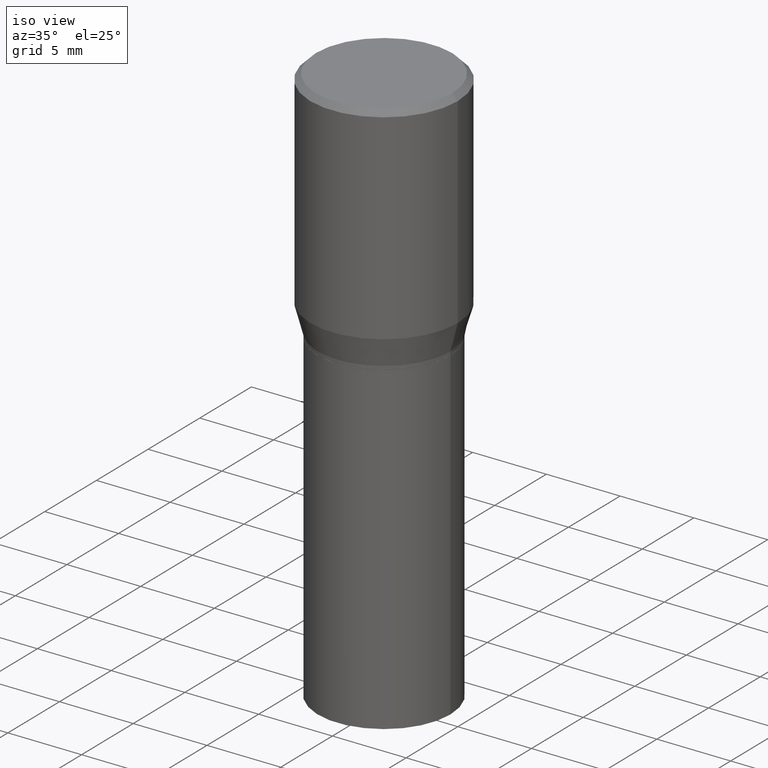
[diagram: clean part render]
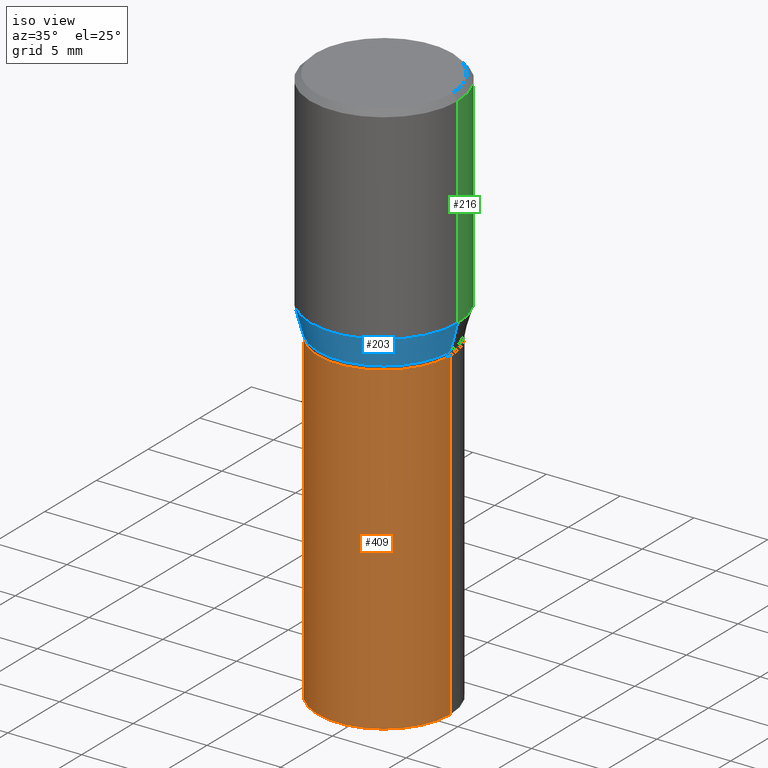
[diagram: same view with three faces highlighted in distinct colors, each labeled with its STEP entity id]
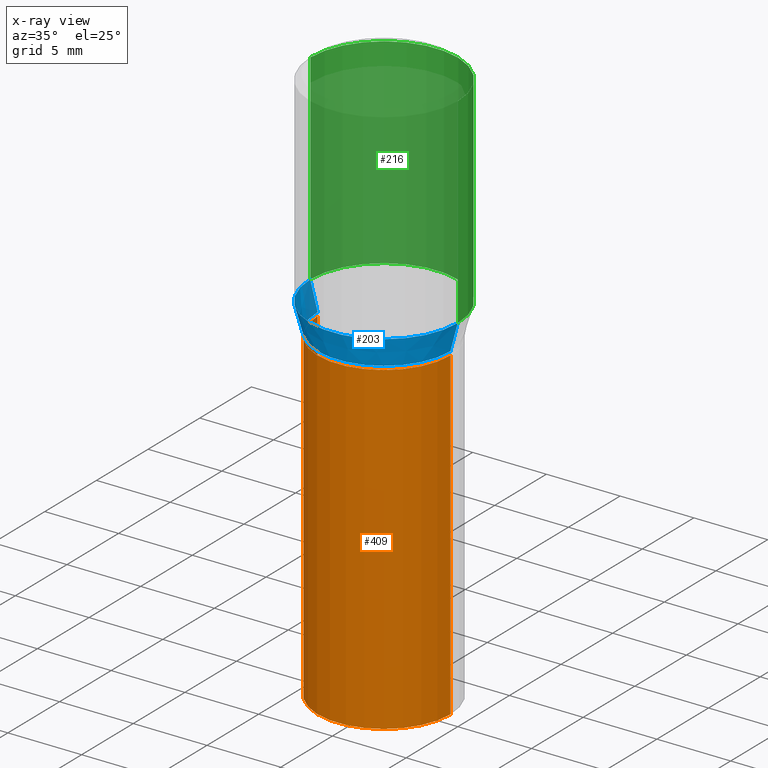
[diagram: x-ray of the same camera — body ghosted, the three highlighted faces saturated]
A machine part, iso view with three faces highlighted in distinct colors.
The next image is the same camera in x-ray (body ghosted, the three faces saturated) — at least one of them is partly hidden behind the body in this view.
Their STEP definitions:

[orange] entity #409 — the highlighted cylindrical surface (partial cylindrical patch) has radius 4.4996 mm, axis along (-0, 0, 1).
#15 = DIRECTION ( 'NONE',  ( -2.445468806185136597E-29, 3.491481338843145583E-15, 1.000000000000000000 ) ) ;
#26 = DIRECTION ( 'NONE',  ( -2.445468806185136597E-29, 3.491481338843145583E-15, 1.000000000000000000 ) ) ;
#30 = VERTEX_POINT ( 'NONE', #93 ) ;
#48 = ORIENTED_EDGE ( 'NONE', *, *, #219, .F. ) ;
#49 = CARTESIAN_POINT ( 'NONE',  ( -0.1771500000000000019, 1.258726456399017493E-15, -8.713893512386565325E-30 ) ) ;
#62 = CARTESIAN_POINT ( 'NONE',  ( 3.668203209277704895E-29, -5.237222008264718177E-15, -1.500000000000000222 ) ) ;
#70 = EDGE_CURVE ( 'NONE', #84, #30, #335, .T. ) ;
#84 = VERTEX_POINT ( 'NONE', #241 ) ;
#93 = CARTESIAN_POINT ( 'NONE',  ( 0.1771500000000000019, -3.450281859044792971E-15, -0.6339000000000001300 ) ) ;
#101 = VERTEX_POINT ( 'NONE', #393 ) ;
#123 = DIRECTION ( 'NONE',  ( -2.445468806185136597E-29, 3.491481338843145583E-15, 1.000000000000000000 ) ) ;
#134 = CIRCLE ( 'NONE', #381, 0.1771500000000000019 ) ;
#167 = DIRECTION ( 'NONE',  ( -2.445468806185136877E-29, 3.491481338843145188E-15, 1.000000000000000000 ) ) ;
#180 = CYLINDRICAL_SURFACE ( 'NONE', #420, 0.1771500000000000019 ) ;
#181 = VECTOR ( 'NONE', #167, 39.37007874015748143 ) ;
#198 = CARTESIAN_POINT ( 'NONE',  ( 1.550182676240758652E-29, -2.213250020692670577E-15, -0.6339000000000001300 ) ) ;
#208 = AXIS2_PLACEMENT_3D ( 'NONE', #198, #123, #366 ) ;
#219 = EDGE_CURVE ( 'NONE', #101, #376, #359, .T. ) ;
#239 = EDGE_CURVE ( 'NONE', #101, #84, #134, .T. ) ;
#241 = CARTESIAN_POINT ( 'NONE',  ( 0.1771500000000000019, -6.474253846616840571E-15, -1.500000000000000222 ) ) ;
#255 = ORIENTED_EDGE ( 'NONE', *, *, #372, .F. ) ;
#313 = CARTESIAN_POINT ( 'NONE',  ( 0.000000000000000000, 0.000000000000000000, 0.000000000000000000 ) ) ;
#315 = DIRECTION ( 'NONE',  ( 1.000000000000000000, -6.982962677686266711E-15, 0.000000000000000000 ) ) ;
#316 = ORIENTED_EDGE ( 'NONE', *, *, #239, .T. ) ;
#332 = DIRECTION ( 'NONE',  ( -2.445468806185136877E-29, 3.491481338843145188E-15, 1.000000000000000000 ) ) ;
#335 = LINE ( 'NONE', #399, #181 ) ;
#342 = FACE_OUTER_BOUND ( 'NONE', #404, .T. ) ;
#359 = LINE ( 'NONE', #49, #367 ) ;
#361 = ORIENTED_EDGE ( 'NONE', *, *, #70, .T. ) ;
#362 = CARTESIAN_POINT ( 'NONE',  ( -0.1771500000000000019, -2.466509558079677081E-15, -0.6339000000000001300 ) ) ;
#366 = DIRECTION ( 'NONE',  ( 1.000000000000000000, -6.982962677686266711E-15, 0.000000000000000000 ) ) ;
#367 = VECTOR ( 'NONE', #332, 39.37007874015748143 ) ;
#372 = EDGE_CURVE ( 'NONE', #376, #30, #426, .T. ) ;
#376 = VERTEX_POINT ( 'NONE', #362 ) ;
#381 = AXIS2_PLACEMENT_3D ( 'NONE', #62, #26, #315 ) ;
#393 = CARTESIAN_POINT ( 'NONE',  ( -0.1771500000000000019, -2.466509558079677081E-15, -1.500000000000000222 ) ) ;
#396 = DIRECTION ( 'NONE',  ( 1.000000000000000000, -6.982962677686266711E-15, 4.876176775795935793E-29 ) ) ;
#399 = CARTESIAN_POINT ( 'NONE',  ( 0.1771500000000000019, -1.237031838352122197E-15, 8.638147158322499960E-30 ) ) ;
#404 = EDGE_LOOP ( 'NONE', ( #48, #316, #361, #255 ) ) ;
#409 = ADVANCED_FACE ( 'NONE', ( #342 ), #180, .T. ) ;
#420 = AXIS2_PLACEMENT_3D ( 'NONE', #313, #15, #396 ) ;
#426 = CIRCLE ( 'NONE', #208, 0.1771500000000000019 ) ;

[blue] entity #203 — the highlighted conical surface has half-angle 15 deg.
#14 = DIRECTION ( 'NONE',  ( 1.000000000000000000, -6.982962677686267499E-15, 0.000000000000000000 ) ) ;
#25 = LINE ( 'NONE', #444, #435 ) ;
#32 = ORIENTED_EDGE ( 'NONE', *, *, #406, .F. ) ;
#34 = VERTEX_POINT ( 'NONE', #294 ) ;
#41 = ORIENTED_EDGE ( 'NONE', *, *, #304, .T. ) ;
#50 = EDGE_CURVE ( 'NONE', #34, #358, #345, .T. ) ;
#54 = CARTESIAN_POINT ( 'NONE',  ( 1.525727988178907107E-29, -2.178335207304238928E-15, -0.6239000000000001211 ) ) ;
#60 = DIRECTION ( 'NONE',  ( 1.000000000000000000, -6.982962677686265922E-15, 0.000000000000000000 ) ) ;
#61 = DIRECTION ( 'NONE',  ( 0.2588190451025220717, 1.565188264969615854E-15, 0.9659258262890678681 ) ) ;
#64 = AXIS2_PLACEMENT_3D ( 'NONE', #121, #273, #398 ) ;
#71 = VECTOR ( 'NONE', #145, 39.37007874015748854 ) ;
#121 = CARTESIAN_POINT ( 'NONE',  ( 1.525727988178907107E-29, -2.178335207304238928E-15, -0.6239000000000001211 ) ) ;
#127 = FACE_OUTER_BOUND ( 'NONE', #160, .T. ) ;
#145 = DIRECTION ( 'NONE',  ( -0.2588190451025220717, 5.211531920934554197E-15, 0.9659258262890678681 ) ) ;
#160 = EDGE_LOOP ( 'NONE', ( #32, #259, #41, #320 ) ) ;
#163 = AXIS2_PLACEMENT_3D ( 'NONE', #306, #326, #14 ) ;
#176 = DIRECTION ( 'NONE',  ( -2.445468806185136597E-29, 3.491481338843145583E-15, 1.000000000000000000 ) ) ;
#203 = ADVANCED_FACE ( 'NONE', ( #127 ), #323, .T. ) ;
#233 = CIRCLE ( 'NONE', #64, 0.1771500000000001129 ) ;
#244 = CARTESIAN_POINT ( 'NONE',  ( 0.1968500000000000527, -3.296232811127031185E-15, -0.5503785990908939274 ) ) ;
#259 = ORIENTED_EDGE ( 'NONE', *, *, #412, .T. ) ;
#273 = DIRECTION ( 'NONE',  ( -2.445468806185136597E-29, 3.491481338843145583E-15, 1.000000000000000000 ) ) ;
#281 = LINE ( 'NONE', #415, #71 ) ;
#291 = VERTEX_POINT ( 'NONE', #344 ) ;
#294 = CARTESIAN_POINT ( 'NONE',  ( -0.1968500000000000527, -5.229332326807317894E-16, -0.5503785990908939274 ) ) ;
#304 = EDGE_CURVE ( 'NONE', #385, #358, #25, .T. ) ;
#306 = CARTESIAN_POINT ( 'NONE',  ( 1.345933695668656235E-29, -1.921636608024489183E-15, -0.5503785990908939274 ) ) ;
#320 = ORIENTED_EDGE ( 'NONE', *, *, #50, .F. ) ;
#323 = CONICAL_SURFACE ( 'NONE', #433, 0.1771500000000001129, 0.2617993877991508511 ) ;
#325 = CARTESIAN_POINT ( 'NONE',  ( 0.1771500000000001129, -3.415367045656361716E-15, -0.6239000000000001211 ) ) ;
#326 = DIRECTION ( 'NONE',  ( -2.445468806185136597E-29, 3.491481338843145583E-15, 1.000000000000000000 ) ) ;
#344 = CARTESIAN_POINT ( 'NONE',  ( -0.1771500000000001129, -7.212709917929761191E-16, -0.6239000000000001211 ) ) ;
#345 = CIRCLE ( 'NONE', #163, 0.1968500000000000527 ) ;
#358 = VERTEX_POINT ( 'NONE', #244 ) ;
#385 = VERTEX_POINT ( 'NONE', #325 ) ;
#398 = DIRECTION ( 'NONE',  ( 1.000000000000000000, -6.982962677686265922E-15, 0.000000000000000000 ) ) ;
#406 = EDGE_CURVE ( 'NONE', #291, #34, #281, .T. ) ;
#412 = EDGE_CURVE ( 'NONE', #291, #385, #233, .T. ) ;
#415 = CARTESIAN_POINT ( 'NONE',  ( -0.1771500000000001129, -9.196087509052206461E-16, -0.6239000000000001211 ) ) ;
#433 = AXIS2_PLACEMENT_3D ( 'NONE', #54, #176, #60 ) ;
#435 = VECTOR ( 'NONE', #61, 39.37007874015748854 ) ;
#444 = CARTESIAN_POINT ( 'NONE',  ( 0.1771500000000001129, -3.415367045656361716E-15, -0.6239000000000001211 ) ) ;

[green] entity #216 — the highlighted cylindrical surface (partial cylindrical patch) has radius 5 mm, axis along (-0, 0, 1).
#23 = DIRECTION ( 'NONE',  ( 1.000000000000000000, -6.982962677686265922E-15, 0.000000000000000000 ) ) ;
#29 = AXIS2_PLACEMENT_3D ( 'NONE', #307, #174, #436 ) ;
#34 = VERTEX_POINT ( 'NONE', #294 ) ;
#51 = VERTEX_POINT ( 'NONE', #56 ) ;
#56 = CARTESIAN_POINT ( 'NONE',  ( 0.1968500000000000250, -1.426968423185188885E-15, -0.01499999999999999944 ) ) ;
#57 = VECTOR ( 'NONE', #357, 39.37007874015748143 ) ;
#69 = ORIENTED_EDGE ( 'NONE', *, *, #245, .F. ) ;
#106 = ORIENTED_EDGE ( 'NONE', *, *, #386, .F. ) ;
#113 = CARTESIAN_POINT ( 'NONE',  ( 0.1968500000000000527, -1.374596203102542003E-15, 9.598753983154302260E-30 ) ) ;
#135 = FACE_OUTER_BOUND ( 'NONE', #354, .T. ) ;
#144 = ORIENTED_EDGE ( 'NONE', *, *, #199, .T. ) ;
#170 = LINE ( 'NONE', #247, #257 ) ;
#174 = DIRECTION ( 'NONE',  ( -2.445468806185136597E-29, 3.491481338843145583E-15, 1.000000000000000000 ) ) ;
#175 = LINE ( 'NONE', #113, #57 ) ;
#179 = EDGE_CURVE ( 'NONE', #34, #237, #170, .T. ) ;
#195 = CIRCLE ( 'NONE', #200, 0.1968500000000000250 ) ;
#199 = EDGE_CURVE ( 'NONE', #358, #34, #319, .T. ) ;
#200 = AXIS2_PLACEMENT_3D ( 'NONE', #211, #220, #23 ) ;
#209 = DIRECTION ( 'NONE',  ( 1.000000000000000000, -6.982962677686266711E-15, 4.876176775795935793E-29 ) ) ;
#211 = CARTESIAN_POINT ( 'NONE',  ( 3.668203209277705088E-31, -5.237222008264718399E-17, -0.01499999999999999944 ) ) ;
#216 = ADVANCED_FACE ( 'NONE', ( #135 ), #280, .T. ) ;
#220 = DIRECTION ( 'NONE',  ( -2.445468806185136597E-29, 3.491481338843145583E-15, 1.000000000000000000 ) ) ;
#237 = VERTEX_POINT ( 'NONE', #379 ) ;
#244 = CARTESIAN_POINT ( 'NONE',  ( 0.1968500000000000527, -3.296232811127031185E-15, -0.5503785990908939274 ) ) ;
#245 = EDGE_CURVE ( 'NONE', #51, #237, #195, .T. ) ;
#247 = CARTESIAN_POINT ( 'NONE',  ( -0.1968500000000000527, 1.398703375343757590E-15, -9.682923725166785079E-30 ) ) ;
#257 = VECTOR ( 'NONE', #271, 39.37007874015748143 ) ;
#271 = DIRECTION ( 'NONE',  ( -2.445468806185136877E-29, 3.491481338843145188E-15, 1.000000000000000000 ) ) ;
#277 = CARTESIAN_POINT ( 'NONE',  ( 0.000000000000000000, 0.000000000000000000, 0.000000000000000000 ) ) ;
#280 = CYLINDRICAL_SURFACE ( 'NONE', #346, 0.1968500000000000527 ) ;
#294 = CARTESIAN_POINT ( 'NONE',  ( -0.1968500000000000527, -5.229332326807317894E-16, -0.5503785990908939274 ) ) ;
#307 = CARTESIAN_POINT ( 'NONE',  ( 1.345933695668656235E-29, -1.921636608024489183E-15, -0.5503785990908939274 ) ) ;
#319 = CIRCLE ( 'NONE', #29, 0.1968500000000000527 ) ;
#346 = AXIS2_PLACEMENT_3D ( 'NONE', #277, #405, #209 ) ;
#354 = EDGE_LOOP ( 'NONE', ( #144, #419, #69, #106 ) ) ;
#357 = DIRECTION ( 'NONE',  ( -2.445468806185136877E-29, 3.491481338843145188E-15, 1.000000000000000000 ) ) ;
#358 = VERTEX_POINT ( 'NONE', #244 ) ;
#379 = CARTESIAN_POINT ( 'NONE',  ( -0.1968500000000000250, 4.116989612901891144E-16, -0.01499999999999999944 ) ) ;
#386 = EDGE_CURVE ( 'NONE', #358, #51, #175, .T. ) ;
#405 = DIRECTION ( 'NONE',  ( -2.445468806185136597E-29, 3.491481338843145583E-15, 1.000000000000000000 ) ) ;
#419 = ORIENTED_EDGE ( 'NONE', *, *, #179, .T. ) ;
#436 = DIRECTION ( 'NONE',  ( 1.000000000000000000, -6.982962677686267499E-15, 0.000000000000000000 ) ) ;